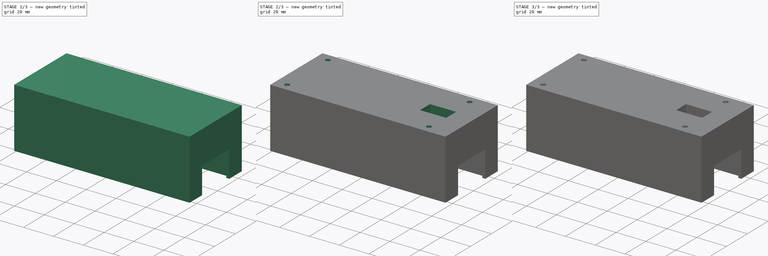
[diagram: build sequence overview — one tinted view per stage of 3, left to right]
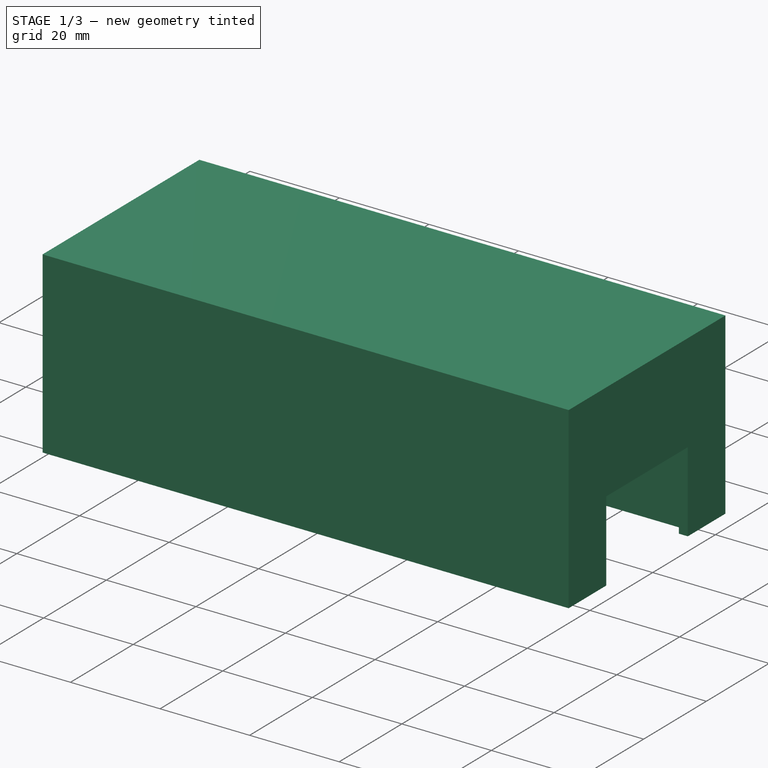
[diagram: stage 1 of 3 — iso view after this stage's code; geometry added in this stage tinted green]
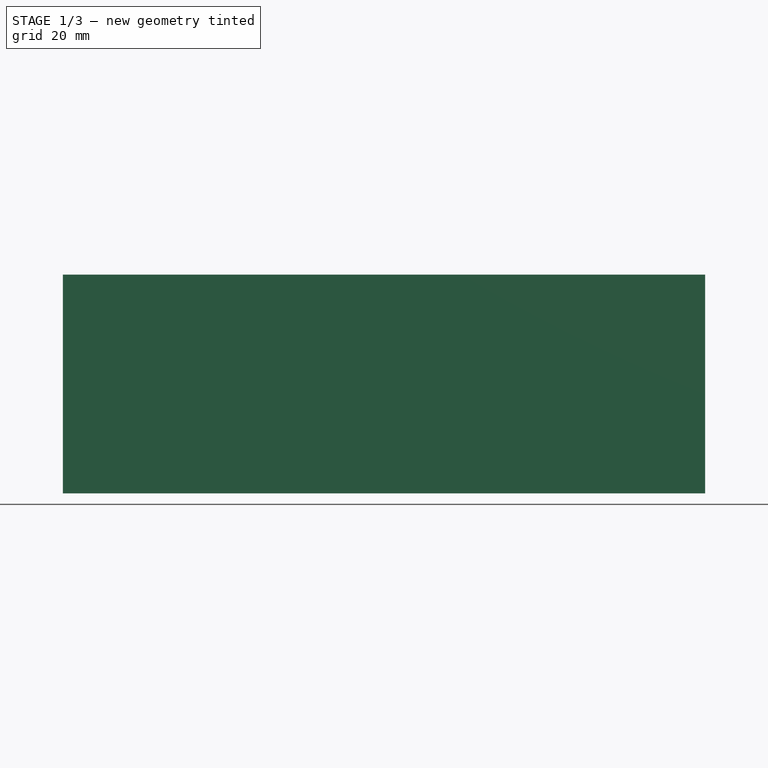
[diagram: stage 1 of 3 — front view after this stage's code; geometry added in this stage tinted green]
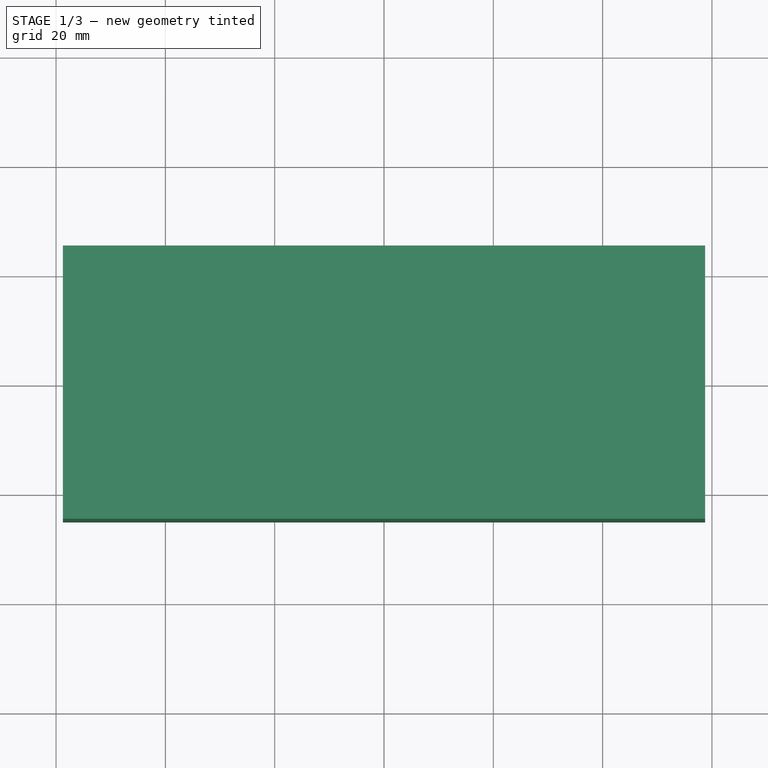
[diagram: stage 1 of 3 — top view after this stage's code; geometry added in this stage tinted green]
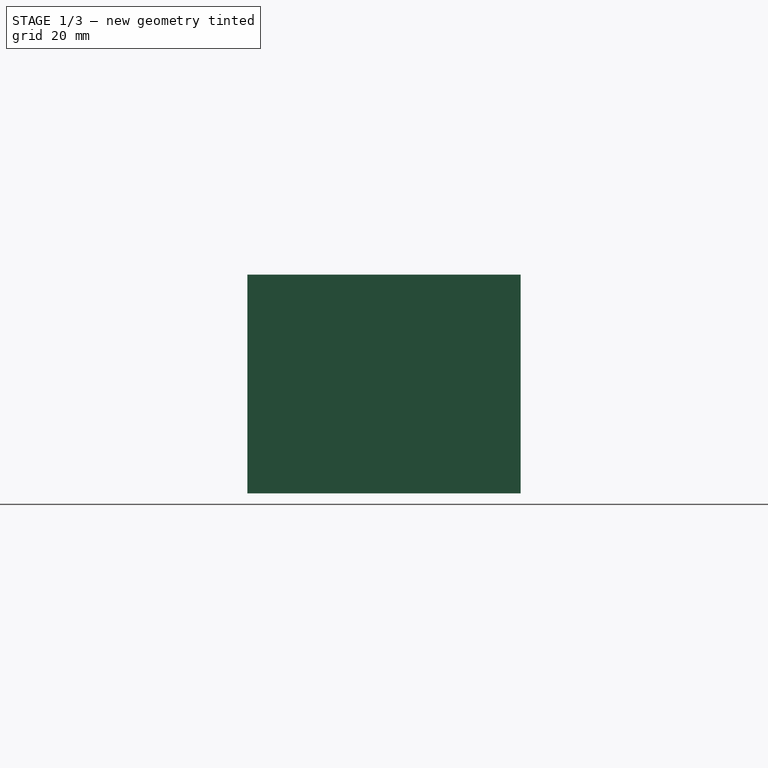
[diagram: stage 1 of 3 — right view after this stage's code; geometry added in this stage tinted green]
FCSTD DOCUMENT  (FreeCAD 0.21R33771 (Git))
Label: Door-Baseplate
License: All rights reserved
LicenseURL: http://en.wikipedia.org/wiki/All_rights_reserved
objects: Sketcher::SketchObject×7, PartDesign::Pocket×5, PartDesign::Pad×1, PartDesign::Plane×1, PartDesign::Body×1
note: 21 computed .brp shape members not serialized (recipe doc carries the construction recipe); baked Part::Feature solids carry a one-line shape summary decoded from their .brp

FEATURE [Sketcher::SketchObject] Sketch
  FullyConstrained = true
  MapMode = 5
  Support = -> [XY_Plane]
  sketch-geometry (5):
    g0: LineSegment StartX=-58.75 StartY=-25 StartZ=0 EndX=-58.75 EndY=25 EndZ=0
    g1: LineSegment StartX=-58.75 StartY=25 StartZ=0 EndX=58.75 EndY=25 EndZ=0
    g2: LineSegment StartX=58.75 StartY=25 StartZ=0 EndX=58.75 EndY=-25 EndZ=0
    g3: LineSegment StartX=58.75 StartY=-25 StartZ=0 EndX=-58.75 EndY=-25 EndZ=0
    g4: GeomPoint X=0 Y=1e-16 Z=0
  constraints (12):
    c: Coincident(g0,g1)
    c: Coincident(g1,g2)
    c: Coincident(g2,g3)
    c: Coincident(g3,g0)
    c: Horizontal(g1)
    c: Horizontal(g3)
    c: Vertical(g0)
    c: Vertical(g2)
    c: Symmetric(g1,g0,g4)
    c: Coincident(g4,g-1)
    c: DistanceX(g1,g1) = 117.5
    c: DistanceY(g2,g2) = 50
FEATURE [PartDesign::Pad] Pad
  Direction = (0,0,1)
  Length = 40
  Length2 = 10
  Profile = -> Sketch
  ReferenceAxis = -> Sketch [N_Axis]
  Type = 0
FEATURE [Sketcher::SketchObject] Sketch001
  ExternalGeometry = -> [Pad]
  FullyConstrained = true
  MapMode = 5
  Support = -> [XY_Plane]
  sketch-geometry (8):
    g0: LineSegment StartX=56.75 StartY=-13 StartZ=0 EndX=58.75 EndY=-13 EndZ=0
    g1: LineSegment StartX=58.75 StartY=-13 StartZ=0 EndX=58.75 EndY=13 EndZ=0
    g2: LineSegment StartX=58.75 StartY=13 StartZ=0 EndX=56.75 EndY=13 EndZ=0
    g3: LineSegment StartX=-51.25 StartY=15.25 StartZ=0 EndX=56.75 EndY=15.25 EndZ=0
    g4: LineSegment StartX=56.75 StartY=15.25 StartZ=0 EndX=56.75 EndY=13 EndZ=0
    g5: LineSegment StartX=56.75 StartY=-15.25 StartZ=0 EndX=-51.25 EndY=-15.25 EndZ=0
    g6: LineSegment StartX=-51.25 StartY=-15.25 StartZ=0 EndX=-51.25 EndY=15.25 EndZ=0
    g7: LineSegment StartX=56.75 StartY=-13 StartZ=0 EndX=56.75 EndY=-15.25 EndZ=0
  constraints (24):
    c: Coincident(g0,g1)
    c: Coincident(g1,g2)
    c: Horizontal(g0)
    c: Horizontal(g2)
    c: Vertical(g1)
    c: DistanceY(g0,g1) = 26
    c: Coincident(g3,g4)
    c: Coincident(g7,g5)
    c: Coincident(g5,g6)
    c: Coincident(g6,g3)
    c: Horizontal(g3)
    c: Horizontal(g5)
    c: Vertical(g4)
    c: Vertical(g6)
    c: DistanceX(g3,g3) = 108
    c: DistanceY(g5,g3) = 30.5
    c: DistanceY(g-4,g5) = 9.75
    c: Coincident(g4,g2)
    c: Coincident(g7,g0)
    c: DistanceY(g2,g3) = 2.25
    c: DistanceX(g-4,g3) = 7.5
    c: DistanceX(g5,g-5) = 2
    c: DistanceX(g2,g1) = 2
    c: DistanceX(g0,g0) = 2
FEATURE [PartDesign::Pocket] Pocket
  BaseFeature = -> Pad
  Direction = (0,0,-1)
  Length = 36
  Length2 = 5
  Midplane = true
  Profile = -> Sketch001
  ReferenceAxis = -> Sketch001 [N_Axis]
  Type = 0
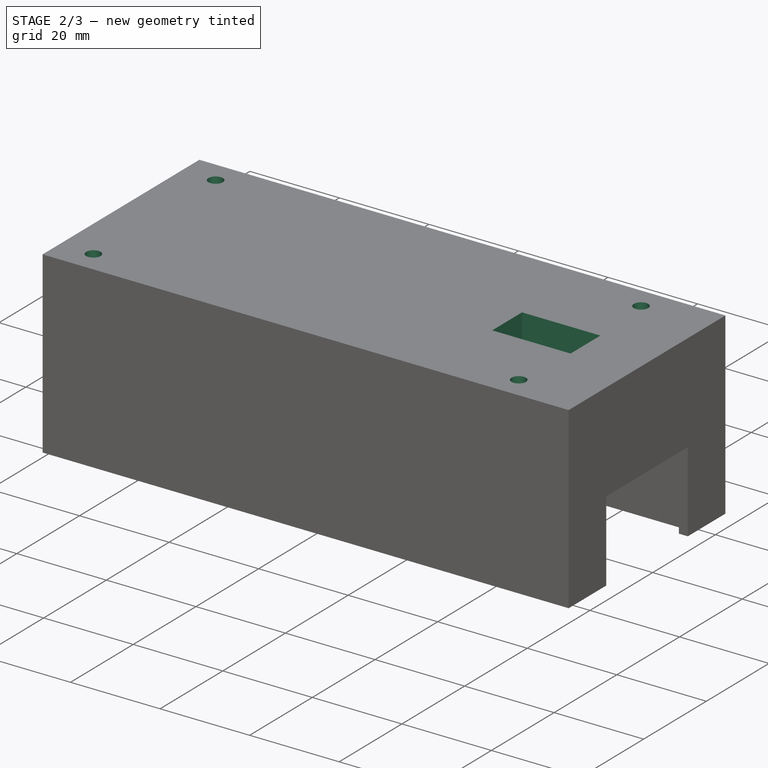
[diagram: stage 2 of 3 — iso view after this stage's code; geometry added in this stage tinted green]
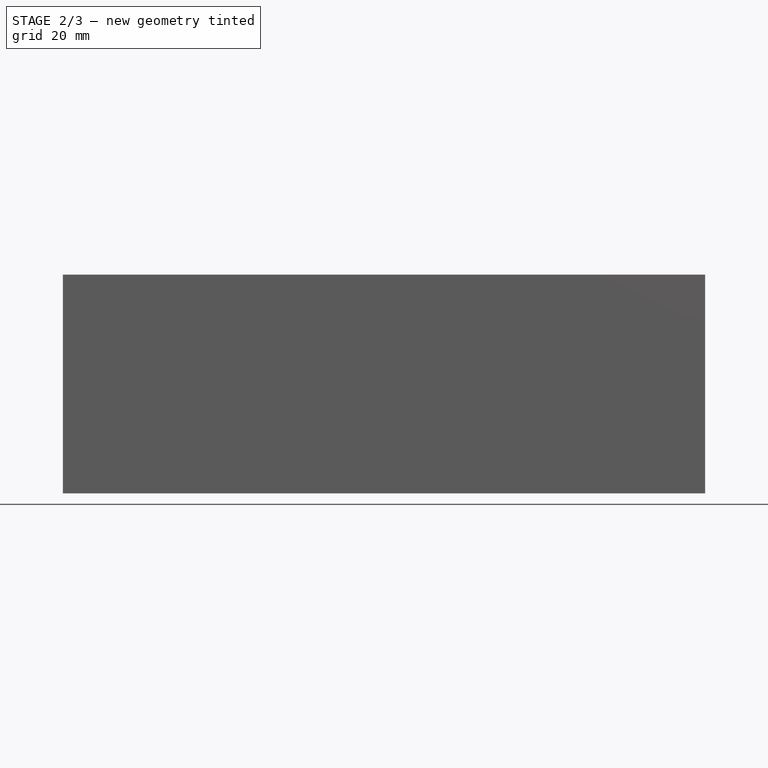
[diagram: stage 2 of 3 — front view after this stage's code; geometry added in this stage tinted green]
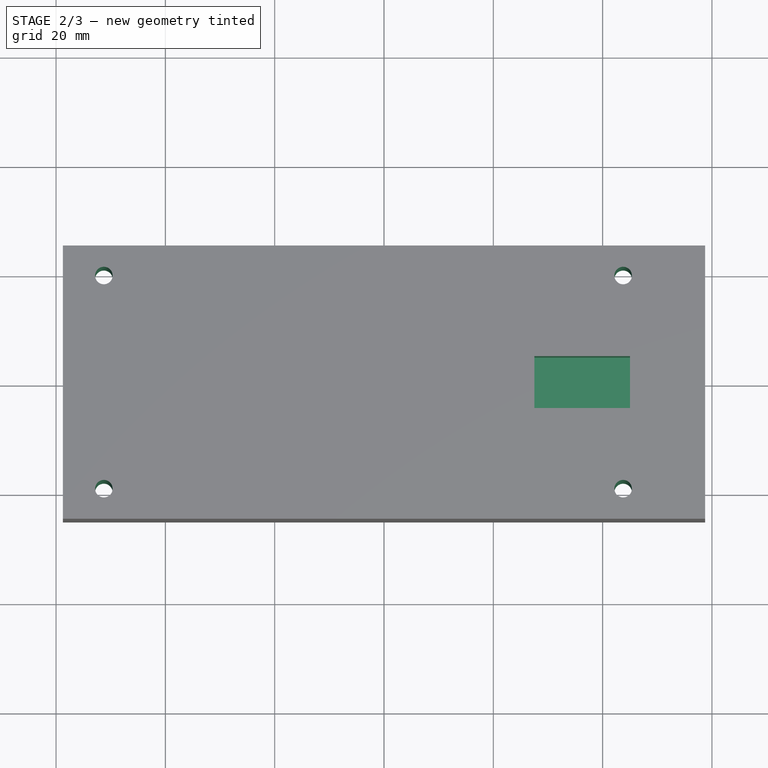
[diagram: stage 2 of 3 — top view after this stage's code; geometry added in this stage tinted green]
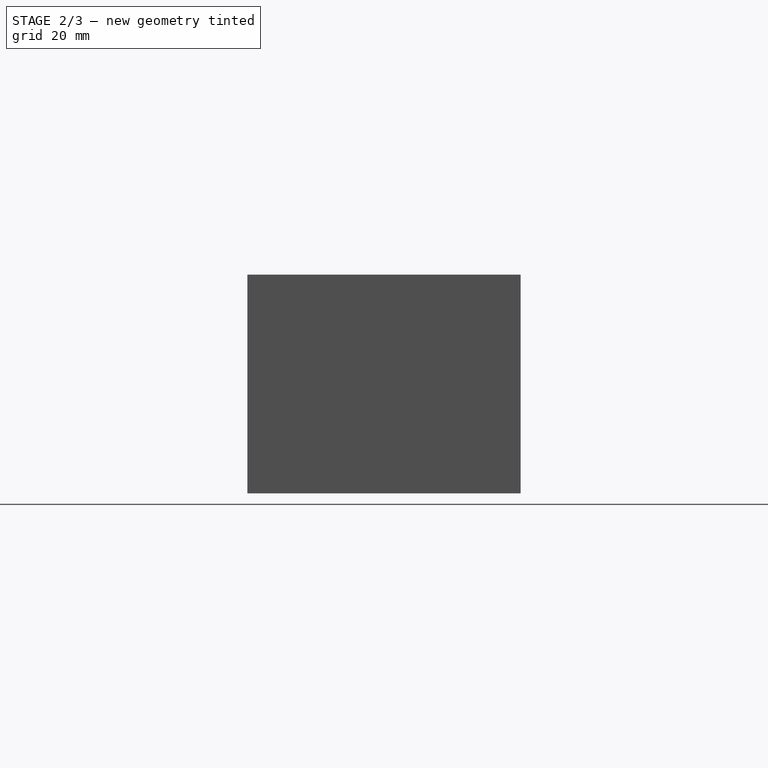
[diagram: stage 2 of 3 — right view after this stage's code; geometry added in this stage tinted green]
FEATURE [Sketcher::SketchObject] Sketch002
  ExternalGeometry = -> [Pocket]
  FullyConstrained = true
  MapMode = 5
  Support = -> [XY_Plane]
  sketch-geometry (4):
    g0: Circle CenterX=-51.25 CenterY=19.5 CenterZ=0 NormalX=0 NormalY=0 NormalZ=1 AngleXU=0 Radius=1.6
    g1: Circle CenterX=43.75 CenterY=19.5 CenterZ=0 NormalX=0 NormalY=0 NormalZ=1 AngleXU=0 Radius=1.6
    g2: Circle CenterX=-51.25 CenterY=-19.5 CenterZ=0 NormalX=0 NormalY=0 NormalZ=1 AngleXU=0 Radius=1.6
    g3: Circle CenterX=43.75 CenterY=-19.5 CenterZ=0 NormalX=0 NormalY=0 NormalZ=1 AngleXU=0 Radius=1.6
  constraints (12):
    c: Diameter(g2) = 3.2
    c: Diameter(g0) = 3.2
    c: Diameter(g1) = 3.2
    c: Diameter(g3) = 3.2
    c: DistanceX(g0,g1) = 95
    c: DistanceX(g2,g3) = 95
    c: DistanceY(g2,g0) = 39
    c: DistanceX(g-5,g0) = 7.5
    c: DistanceX(g-4,g2) = 7.5
    c: DistanceY(g1,g-6) = 5.5
    c: DistanceY(g0,g-5) = 5.5
    c: DistanceY(g3,g1) = 39
FEATURE [PartDesign::Pocket] Pocket001  label="Bohrungen"
  BaseFeature = -> Pocket
  Direction = (0,0,-1)
  Length = 5
  Length2 = 5
  Profile = -> Sketch002
  ReferenceAxis = -> Sketch002 [N_Axis]
  Reversed = true
  Type = 1
FEATURE [Sketcher::SketchObject] Sketch003
  ExternalGeometry = -> [Pocket001]
  FullyConstrained = true
  MapMode = 5
  Placement = pos=(0,0,40) rot=(0,0,1;0rad)
  Support = -> [Pocket001]
  sketch-geometry (5):
    g0: LineSegment StartX=27.5 StartY=4.75 StartZ=0 EndX=27.5 EndY=-4.75 EndZ=0
    g1: LineSegment StartX=27.5 StartY=-4.75 StartZ=0 EndX=45 EndY=-4.75 EndZ=0
    g2: LineSegment StartX=45 StartY=-4.75 StartZ=0 EndX=45 EndY=4.75 EndZ=0
    g3: LineSegment StartX=45 StartY=4.75 StartZ=0 EndX=27.5 EndY=4.75 EndZ=0
    g4: GeomPoint X=36.25 Y=1.1e-15 Z=0
  constraints (13):
    c: Coincident(g0,g1)
    c: Coincident(g1,g2)
    c: Coincident(g2,g3)
    c: Coincident(g3,g0)
    c: Horizontal(g1)
    c: Horizontal(g3)
    c: Vertical(g0)
    c: Vertical(g2)
    c: Symmetric(g1,g0,g4)
    c: DistanceY(g1,g2) = 9.5
    c: DistanceX(g0,g2) = 17.5
    c: DistanceY(g4,g-4) = 25
    c: DistanceX(g4,g-4) = 22.5
FEATURE [PartDesign::Pocket] Pocket002
  BaseFeature = -> Pocket001
  Direction = (0,0,-1)
  Length = 15
  Length2 = 5
  Profile = -> Sketch003
  ReferenceAxis = -> Sketch003 [N_Axis]
  Type = 0
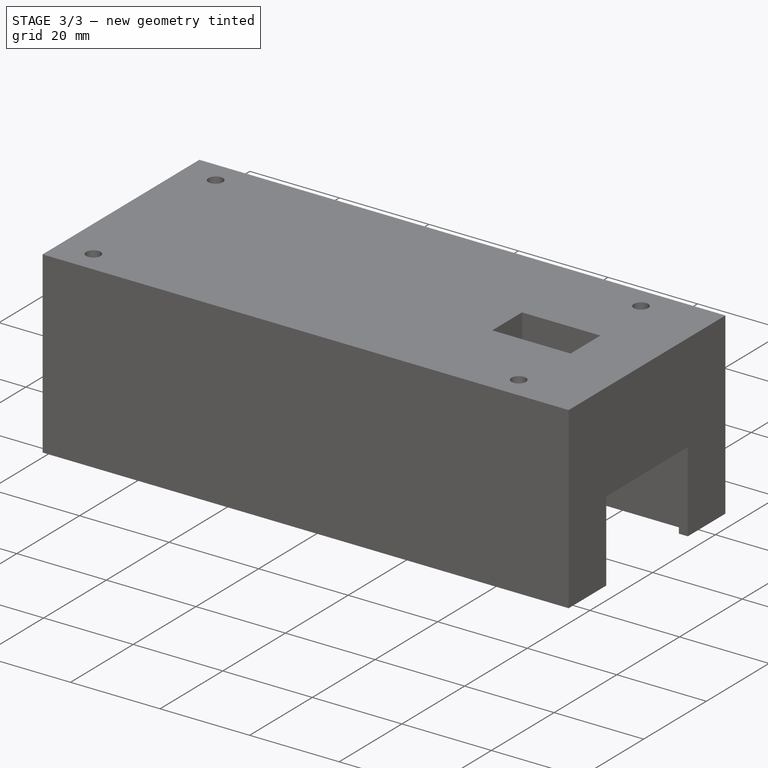
[diagram: stage 3 of 3 — iso view after this stage's code; geometry added in this stage tinted green]
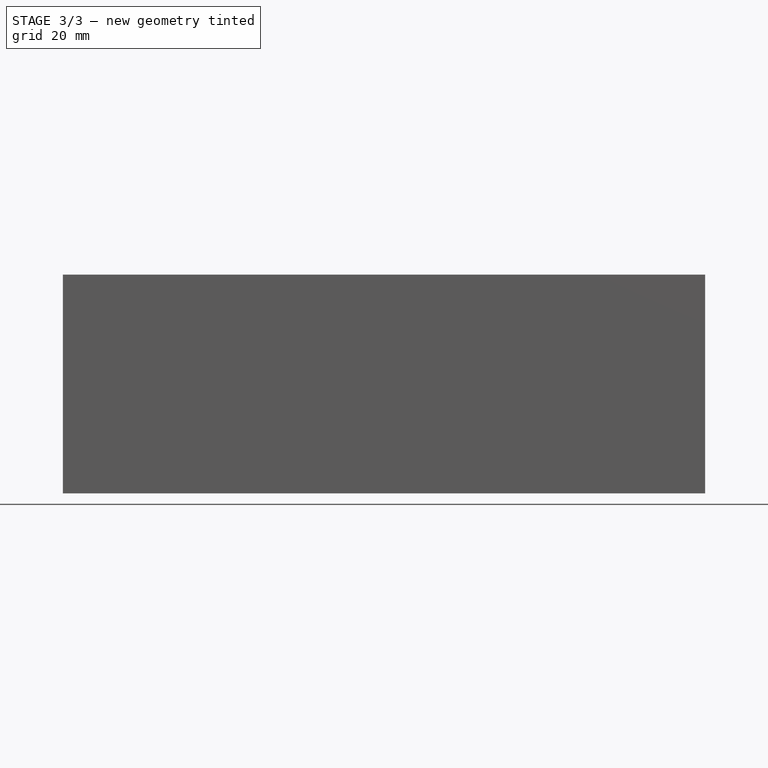
[diagram: stage 3 of 3 — front view after this stage's code; geometry added in this stage tinted green]
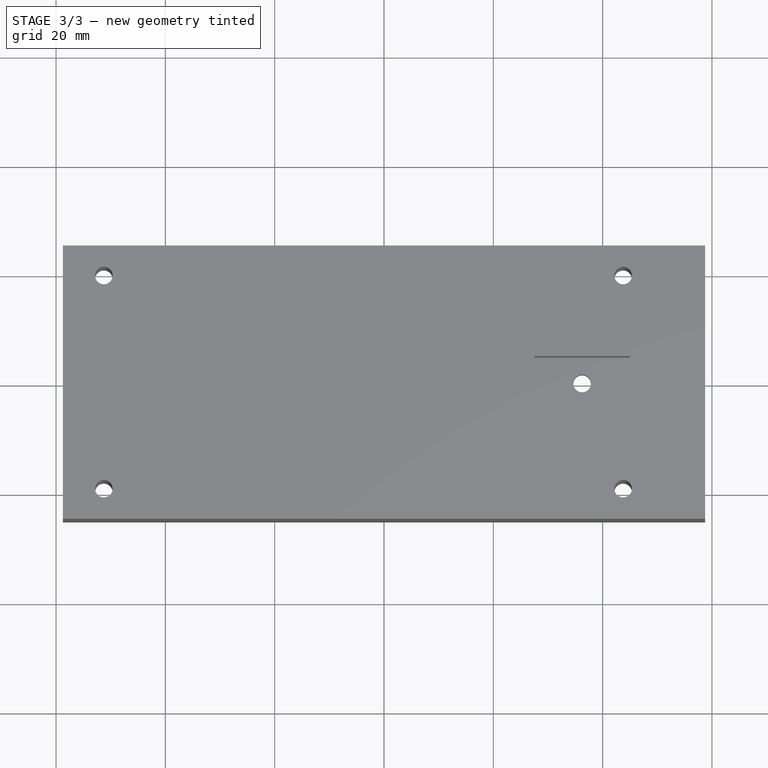
[diagram: stage 3 of 3 — top view after this stage's code; geometry added in this stage tinted green]
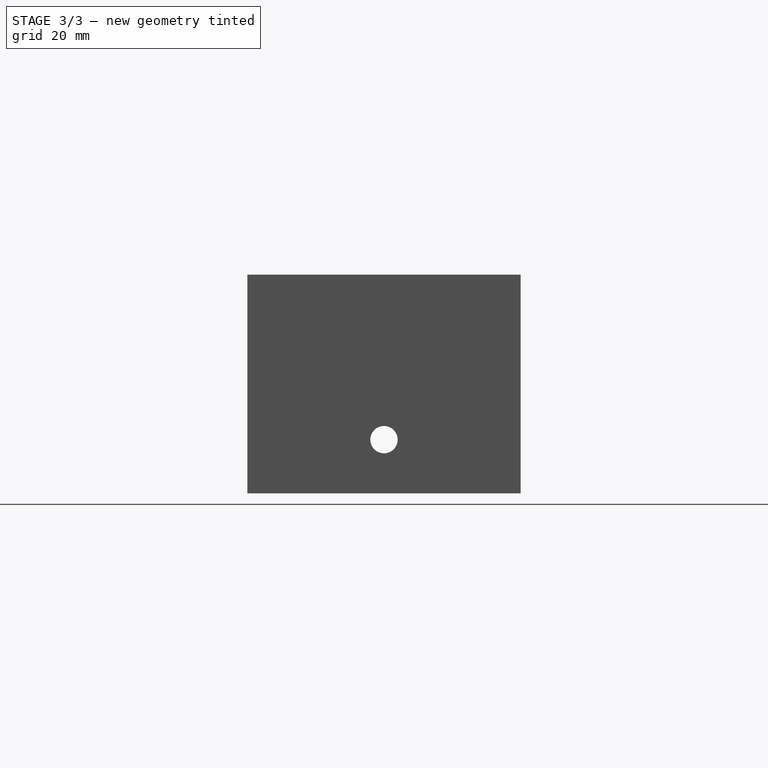
[diagram: stage 3 of 3 — right view after this stage's code; geometry added in this stage tinted green]
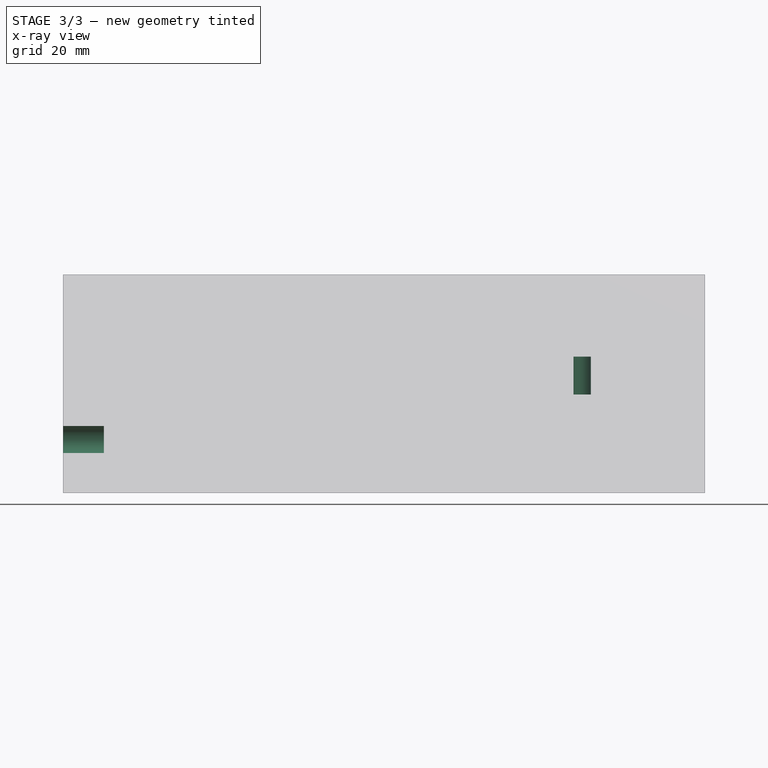
[diagram: stage 3 of 3 — x-ray composite at the front view; earlier geometry ghosted, this stage's added geometry solid]
FEATURE [Sketcher::SketchObject] Sketch004
  ExternalGeometry = -> [Pocket002]
  FullyConstrained = true
  MapMode = 5
  Placement = pos=(0,0,25) rot=(0,0,1;0rad)
  Support = -> [Pocket002]
  sketch-geometry (1):
    g0: Circle CenterX=36.25 CenterY=9e-16 CenterZ=0 NormalX=0 NormalY=0 NormalZ=1 AngleXU=0 Radius=1.6
  constraints (3):
    c: Diameter(g0) = 3.2
    c: DistanceX(g0,g-4) = 8.75
    c: DistanceY(g-4,g0) = 4.75
FEATURE [PartDesign::Pocket] Pocket003
  BaseFeature = -> Pocket002
  Direction = (0,0,-1)
  Length = 5
  Length2 = 5
  Profile = -> Sketch004
  ReferenceAxis = -> Sketch004 [N_Axis]
  Type = 1
FEATURE [Sketcher::SketchObject] Sketch005
  FullyConstrained = true
  MapMode = 5
  Support = -> [XY_Plane]
FEATURE [PartDesign::Plane] DatumPlane
  Length = 61.4018
  MapMode = 5
  Placement = pos=(58.75,0,0) rot=(0.57735,0.57735,0.57735;2.0944rad)
  ResizeMode = 0
  Support = -> [Pocket003]
  Width = 76.4018
FEATURE [Sketcher::SketchObject] Sketch006
  ExternalGeometry = -> [Pocket003]
  FullyConstrained = true
  MapMode = 5
  Placement = pos=(58.75,0,0) rot=(0.57735,0.57735,0.57735;2.0944rad)
  Support = -> [DatumPlane]
  sketch-geometry (1):
    g0: Circle CenterX=-4e-16 CenterY=9.82 CenterZ=0 NormalX=0 NormalY=0 NormalZ=1 AngleXU=0 Radius=2.5
  constraints (3):
    c: DistanceY(g-4,g0) = 9.82
    c: DistanceX(g0,g-4) = 13
    c: Diameter(g0) = 5
FEATURE [PartDesign::Pocket] Pocket004
  BaseFeature = -> Pocket003
  Direction = (-1,0,0)
  Length = 5
  Length2 = 5
  Profile = -> Sketch006
  ReferenceAxis = -> Sketch006 [N_Axis]
  Type = 1
FEATURE [PartDesign::Body] Body  label="Körper"
  Group = -> [Sketch,Pad,Sketch001,Pocket,Sketch002,Pocket001,Sketch003,Pocket002,Sketch004,Pocket003,Sketch005,DatumPlane,Sketch006,Pocket004]
  Origin = -> Origin
  Tip = -> Pocket004
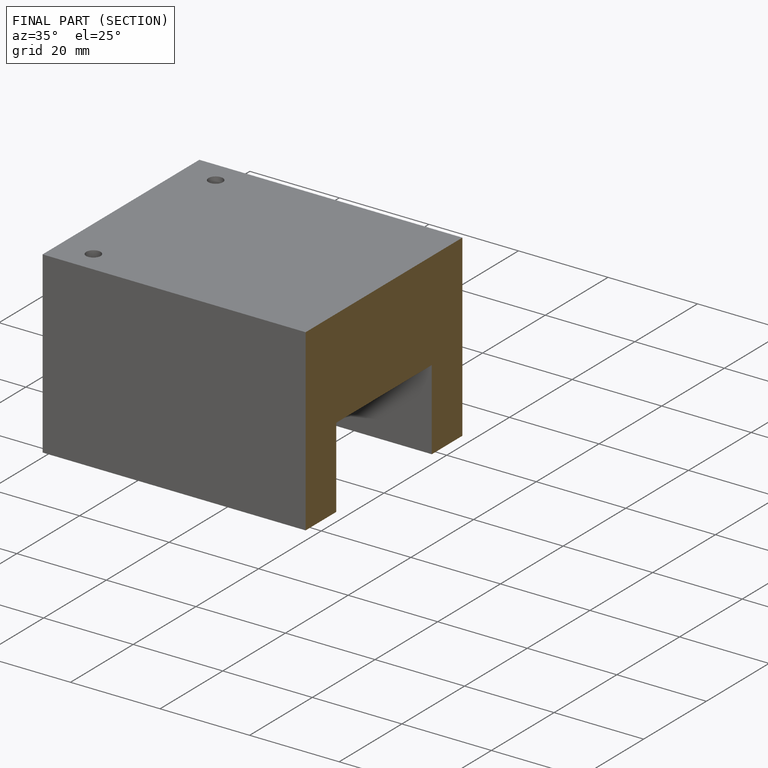
[diagram: finished part — half-section view (interior)]
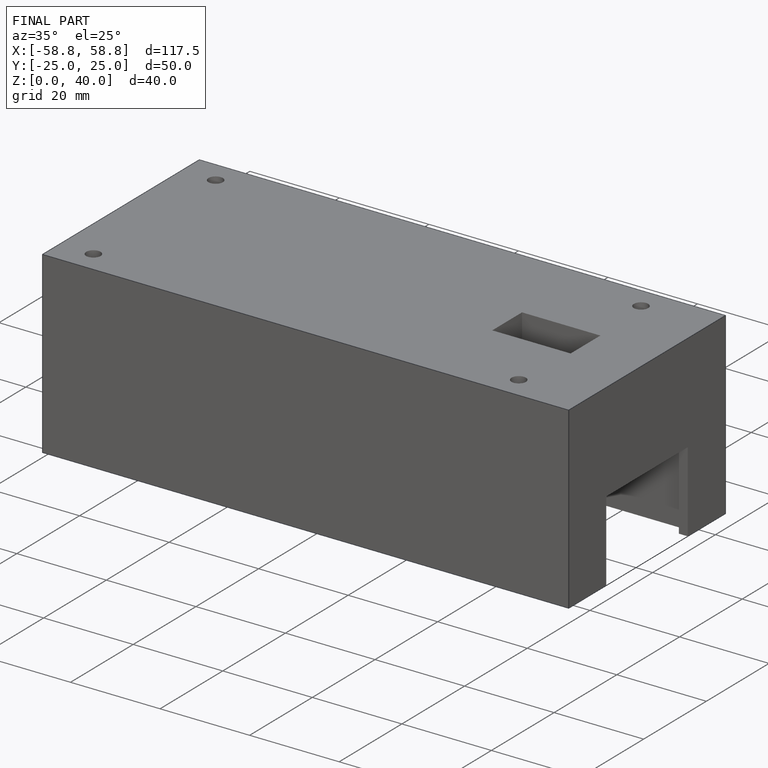
[diagram: finished part — iso view with bounding-box wireframe]
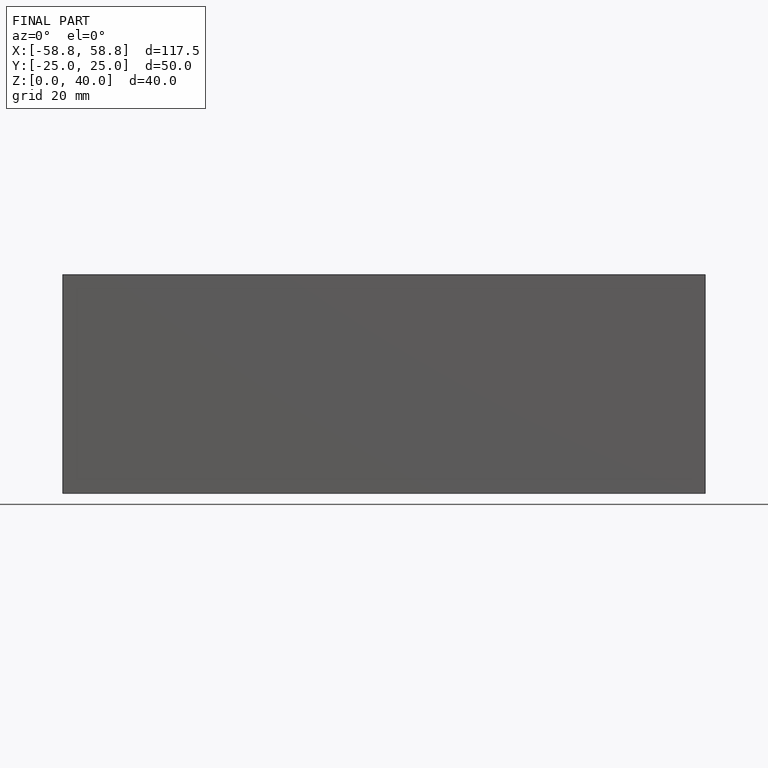
[diagram: finished part — front view with bounding-box wireframe]
